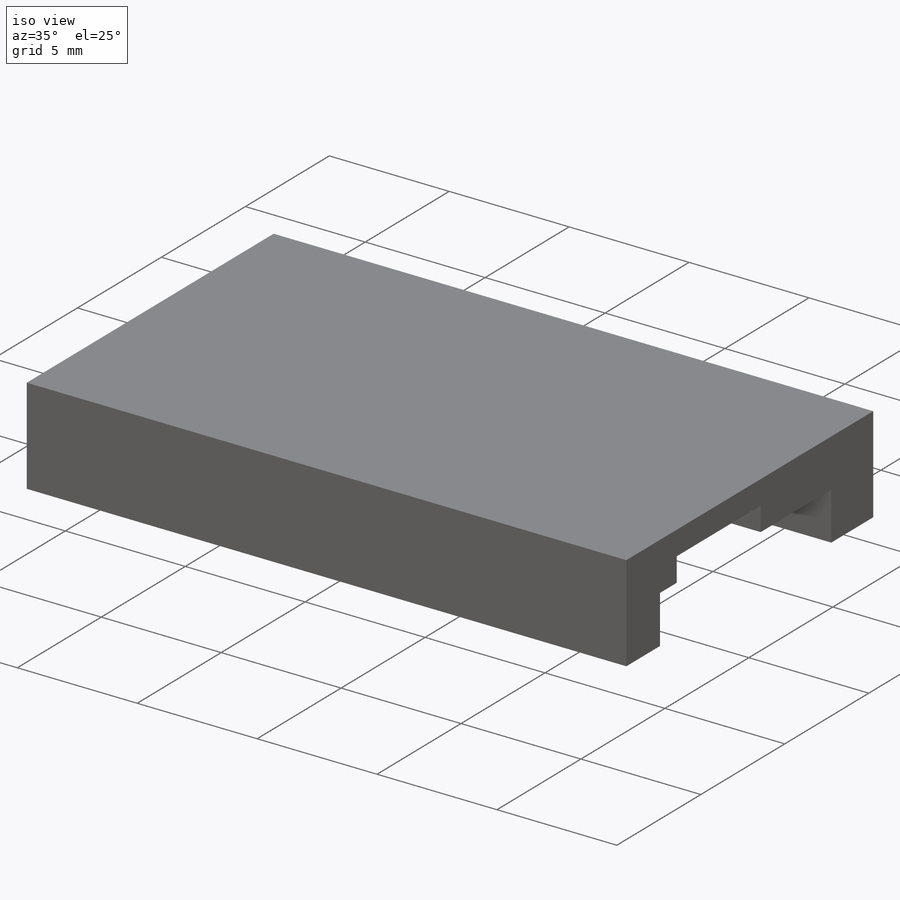
[diagram: iso view]
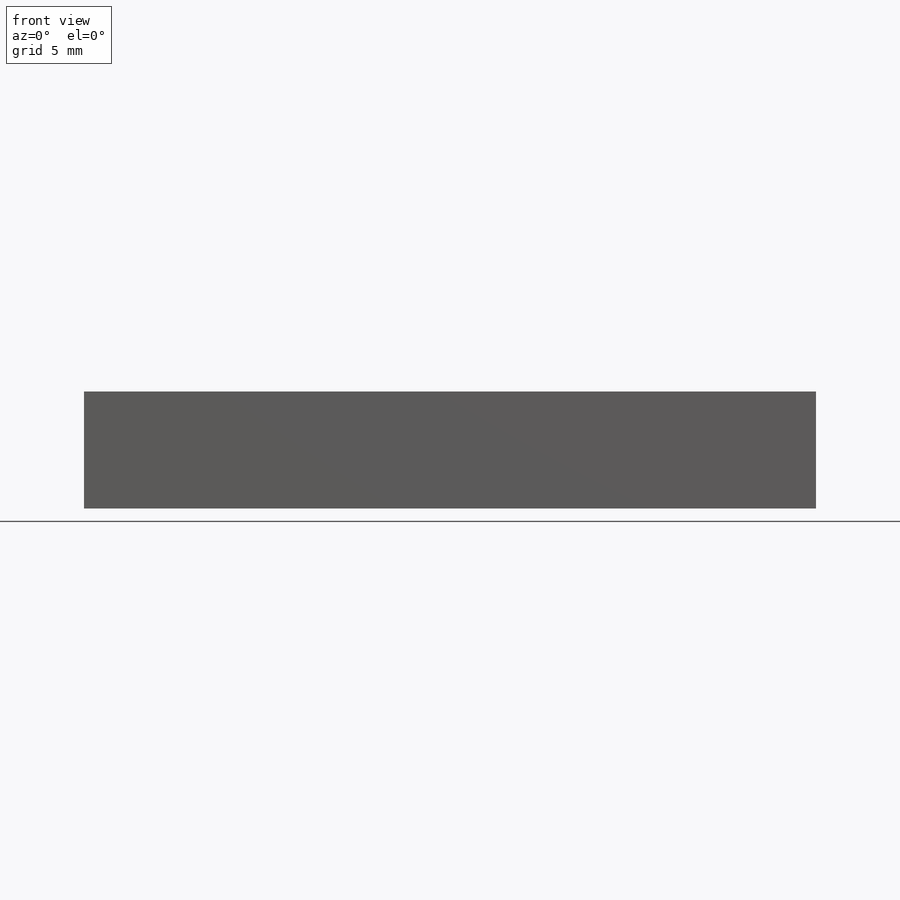
[diagram: front view]
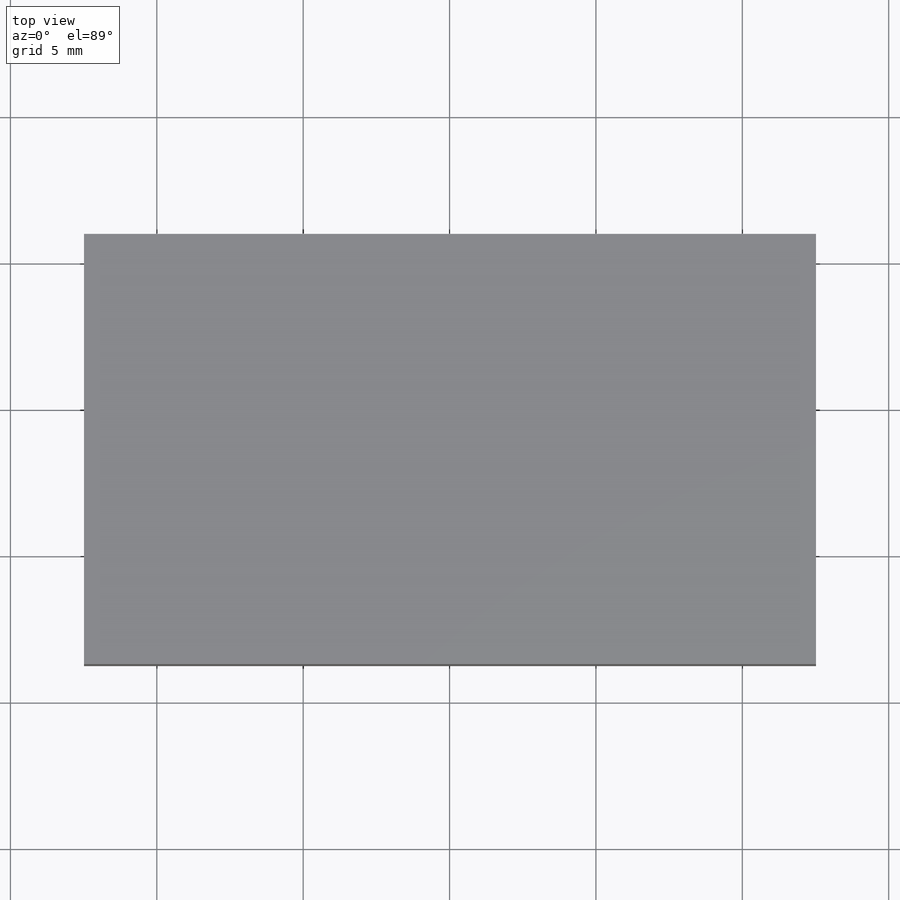
[diagram: top view]
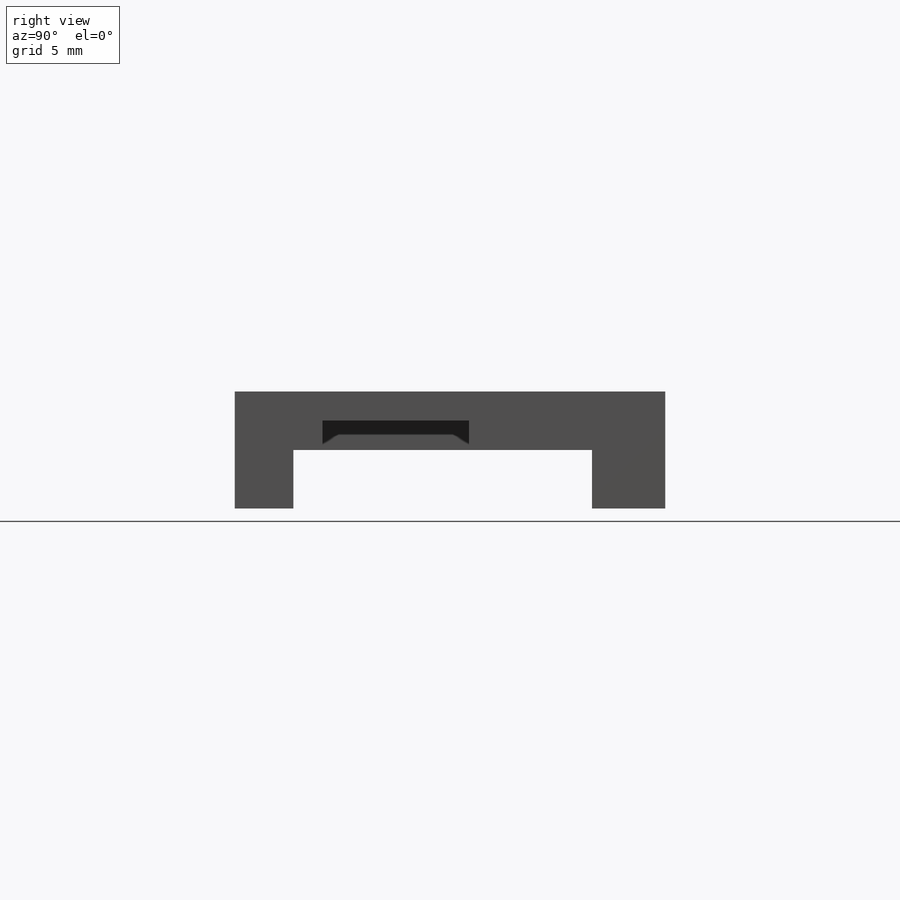
[diagram: right view]
SOLIDWORKS PART (.sldprt)
format: sldprt  version: not decoded by parser v0  size: 274,432 bytes
history: native  units: mm
features: sketch x6, extrude x4, cut_extrude x2, material x1 (+12 scaffold rows collapsed)
feature tree (25):
  scaffold x12  (default folders/planes/origin — collapsed)
  material  "Material <not specified>"
  sketch  "Sketch1"  dims[D1=25.0mm D2=14.7mm]
  extrude  "Boss-Extrude1"  Depth=1mm
  sketch  "Sketch2"  dims[D1=7.3mm D2=5.0mm D3=2.7mm D4=0.0mm D5=2.75mm]
  cut_extrude  "Cut-Extrude1"  Depth=1mm
  sketch  "Sketch3"  dims[D1=5.0mm D2=3.0mm D3=6.7mm D4=7.5mm]
  cut_extrude  "Cut-Extrude2"  Depth=1mm
  sketch  "Sketch4"  dims[D1=1.5mm D2=3.0mm D3=2.0mm D4=1.5mm D5=2.5mm D6=3.0mm D7=0.5mm]
  extrude  "Boss-Extrude2"  Depth=1mm
  sketch  "Sketch9"  dims[D1=12.7mm]
  extrude  "Boss-Extrude3"  Depth=1mm
  sketch  "Sketch11"  dims[D1=1.0mm D2=1.0mm D3=2.5mm D4=2.5mm]
  extrude  "Boss-Extrude5"  Depth=1mm
decode coverage: 12 of 12 modeling features carry decoded parameters
note: suppression state not decoded; provenance and decode notes live in map.json
